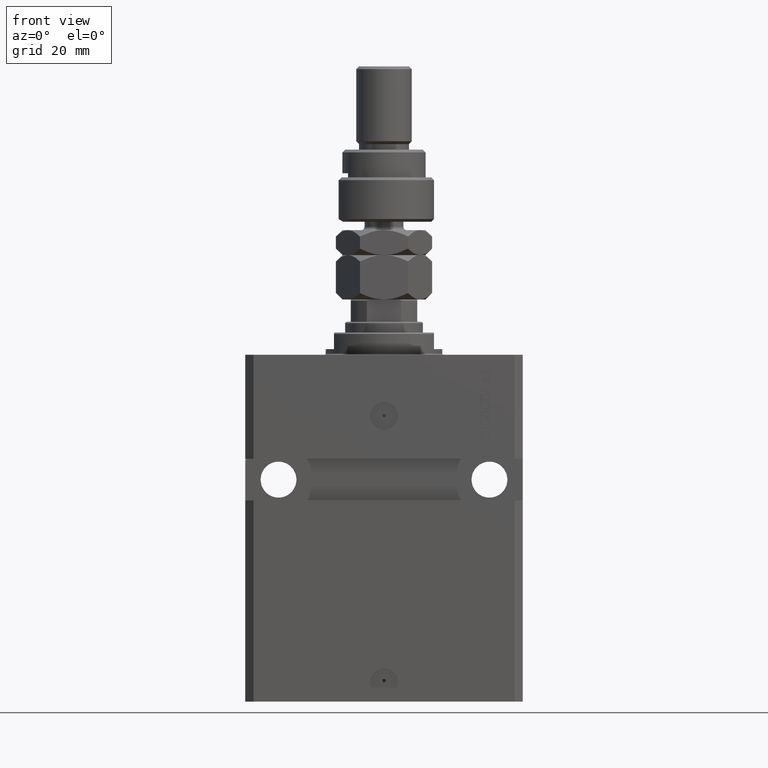
[diagram: clean part render]
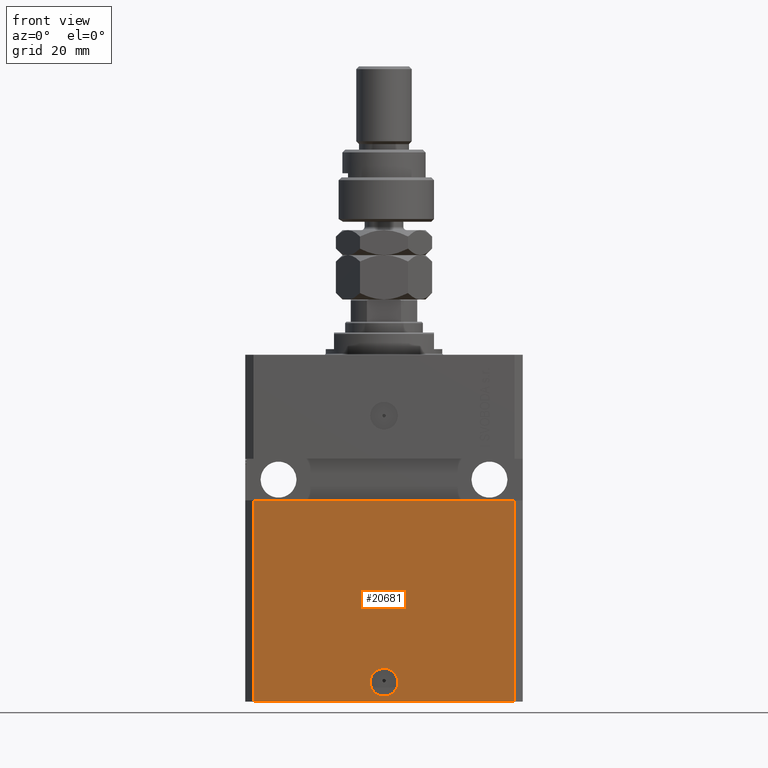
[diagram: same view with one face highlighted and labeled with its STEP entity id]
A machine part, front view. The second image highlights one B-rep face of the part: STEP entity #20681.
In plain terms, the highlighted planar face has unit normal (-0, -1, 0).
Its self-contained STEP definition (entity closure, byte-faithful):
#851 = AXIS2_PLACEMENT_3D ( 'NONE', #25776, #7818, #38708 ) ;
#2255 = CARTESIAN_POINT ( 'NONE',  ( 47.00000000000000000, -37.49999999999999289, -52.49999999999998579 ) ) ;
#2912 = CARTESIAN_POINT ( 'NONE',  ( -47.00000000000000000, -37.49999999999999289, -125.0000000000000000 ) ) ;
#3832 = CARTESIAN_POINT ( 'NONE',  ( 47.00000000000000000, -37.50000000000000711, -125.0000000000000000 ) ) ;
#6143 = AXIS2_PLACEMENT_3D ( 'NONE', #15966, #15462, #31058 ) ;
#6197 = LINE ( 'NONE', #37841, #20080 ) ;
#7565 = PLANE ( 'NONE',  #6143 ) ;
#7818 = DIRECTION ( 'NONE',  ( 1.176083712526788232E-16, -1.000000000000000000, 0.000000000000000000 ) ) ;
#10984 = ORIENTED_EDGE ( 'NONE', *, *, #20069, .T. ) ;
#12254 = ORIENTED_EDGE ( 'NONE', *, *, #43959, .F. ) ;
#12803 = VERTEX_POINT ( 'NONE', #2912 ) ;
#13111 = VECTOR ( 'NONE', #27762, 1000.000000000000000 ) ;
#15433 = EDGE_CURVE ( 'NONE', #34497, #35592, #45363, .T. ) ;
#15462 = DIRECTION ( 'NONE',  ( -1.476360405086644309E-16, -1.000000000000000000, 0.000000000000000000 ) ) ;
#15966 = CARTESIAN_POINT ( 'NONE',  ( -47.00000000000000000, -37.49999999999999289, -125.0000000000000000 ) ) ;
#16307 = ORIENTED_EDGE ( 'NONE', *, *, #45651, .F. ) ;
#17253 = AXIS2_PLACEMENT_3D ( 'NONE', #48737, #36990, #48233 ) ;
#19484 = CARTESIAN_POINT ( 'NONE',  ( -5.000000000000011546, -37.50000000000000000, -118.0000000000000000 ) ) ;
#20069 = EDGE_CURVE ( 'NONE', #12803, #44183, #47500, .T. ) ;
#20080 = VECTOR ( 'NONE', #21511, 1000.000000000000000 ) ;
#20681 = ADVANCED_FACE ( 'NONE', ( #35390, #43038 ), #7565, .T. ) ;
#21511 = DIRECTION ( 'NONE',  ( 0.000000000000000000, 0.000000000000000000, 1.000000000000000000 ) ) ;
#22241 = EDGE_LOOP ( 'NONE', ( #31532, #16307, #10984, #23686 ) ) ;
#23686 = ORIENTED_EDGE ( 'NONE', *, *, #26045, .T. ) ;
#24071 = VECTOR ( 'NONE', #28099, 1000.000000000000000 ) ;
#25776 = CARTESIAN_POINT ( 'NONE',  ( -5.536351519074916863E-15, -37.50000000000000000, -118.0000000000000000 ) ) ;
#25902 = VERTEX_POINT ( 'NONE', #19484 ) ;
#26045 = EDGE_CURVE ( 'NONE', #44183, #35592, #6197, .T. ) ;
#27762 = DIRECTION ( 'NONE',  ( 0.000000000000000000, 0.000000000000000000, 1.000000000000000000 ) ) ;
#27792 = CIRCLE ( 'NONE', #851, 5.000000000000006217 ) ;
#28099 = DIRECTION ( 'NONE',  ( 1.000000000000000000, -1.476360405086644309E-16, 0.000000000000000000 ) ) ;
#28945 = VERTEX_POINT ( 'NONE', #38256 ) ;
#31058 = DIRECTION ( 'NONE',  ( 1.000000000000000000, -1.476360405086644309E-16, 0.000000000000000000 ) ) ;
#31359 = CARTESIAN_POINT ( 'NONE',  ( -47.00000000000000000, -37.49999999999999289, -125.0000000000000000 ) ) ;
#31532 = ORIENTED_EDGE ( 'NONE', *, *, #15433, .F. ) ;
#33596 = EDGE_LOOP ( 'NONE', ( #40986, #12254 ) ) ;
#34497 = VERTEX_POINT ( 'NONE', #42560 ) ;
#35177 = LINE ( 'NONE', #31359, #13111 ) ;
#35390 = FACE_BOUND ( 'NONE', #33596, .T. ) ;
#35592 = VERTEX_POINT ( 'NONE', #2255 ) ;
#35999 = DIRECTION ( 'NONE',  ( 1.000000000000000000, 1.387778780781445676E-16, 1.387778780781445676E-16 ) ) ;
#36002 = CARTESIAN_POINT ( 'NONE',  ( -47.00000000000000000, -37.49999999999999289, -125.0000000000000000 ) ) ;
#36990 = DIRECTION ( 'NONE',  ( 1.176083712526788232E-16, -1.000000000000000000, 0.000000000000000000 ) ) ;
#37841 = CARTESIAN_POINT ( 'NONE',  ( 47.00000000000000000, -37.50000000000000711, -125.0000000000000000 ) ) ;
#38256 = CARTESIAN_POINT ( 'NONE',  ( 5.000000000000000888, -37.50000000000000000, -118.0000000000000000 ) ) ;
#38708 = DIRECTION ( 'NONE',  ( 1.000000000000000000, 0.000000000000000000, 0.000000000000000000 ) ) ;
#40085 = CIRCLE ( 'NONE', #17253, 5.000000000000006217 ) ;
#40986 = ORIENTED_EDGE ( 'NONE', *, *, #41689, .F. ) ;
#41689 = EDGE_CURVE ( 'NONE', #28945, #25902, #40085, .T. ) ;
#41948 = VECTOR ( 'NONE', #35999, 1000.000000000000000 ) ;
#42560 = CARTESIAN_POINT ( 'NONE',  ( -46.99999999999998579, -37.50000000000000711, -52.50000000000000000 ) ) ;
#43038 = FACE_OUTER_BOUND ( 'NONE', #22241, .T. ) ;
#43959 = EDGE_CURVE ( 'NONE', #25902, #28945, #27792, .T. ) ;
#44183 = VERTEX_POINT ( 'NONE', #3832 ) ;
#45363 = LINE ( 'NONE', #48941, #41948 ) ;
#45651 = EDGE_CURVE ( 'NONE', #12803, #34497, #35177, .T. ) ;
#47500 = LINE ( 'NONE', #36002, #24071 ) ;
#48233 = DIRECTION ( 'NONE',  ( 1.000000000000000000, 0.000000000000000000, 0.000000000000000000 ) ) ;
#48737 = CARTESIAN_POINT ( 'NONE',  ( -5.536351519074916863E-15, -37.50000000000000000, -118.0000000000000000 ) ) ;
#48941 = CARTESIAN_POINT ( 'NONE',  ( -50.00000000000001421, -37.50000000000000711, -52.50000000000000000 ) ) ;